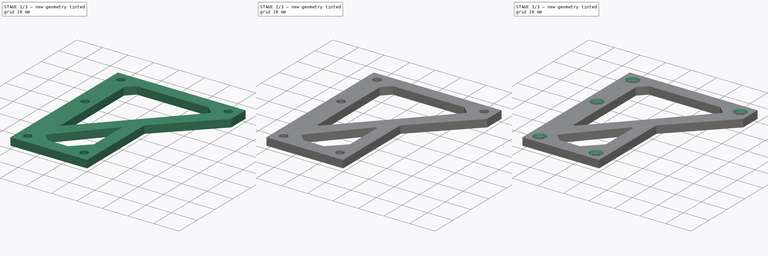
[diagram: build sequence overview — one tinted view per stage of 3, left to right]
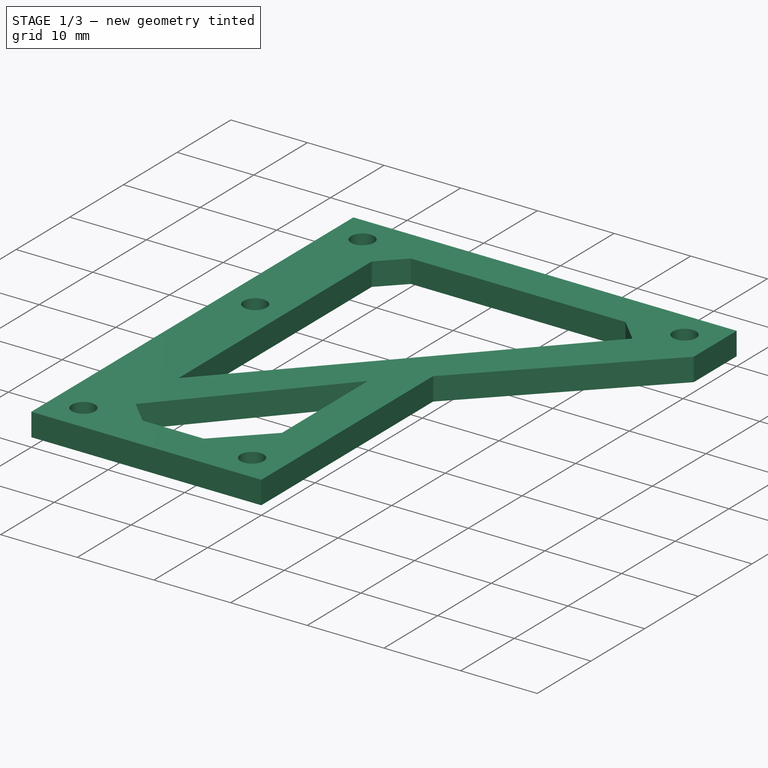
[diagram: stage 1 of 3 — iso view after this stage's code; geometry added in this stage tinted green]
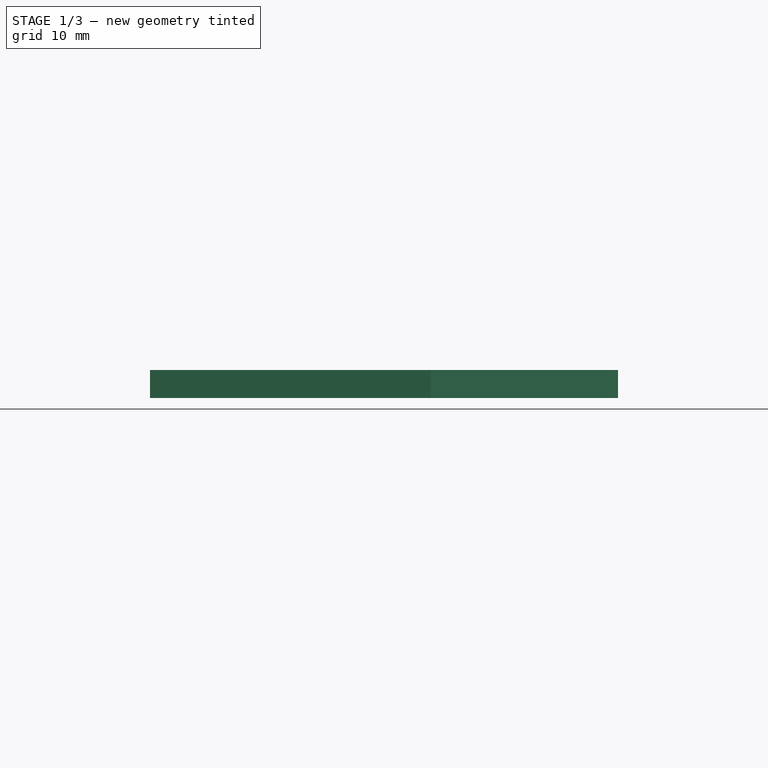
[diagram: stage 1 of 3 — front view after this stage's code; geometry added in this stage tinted green]
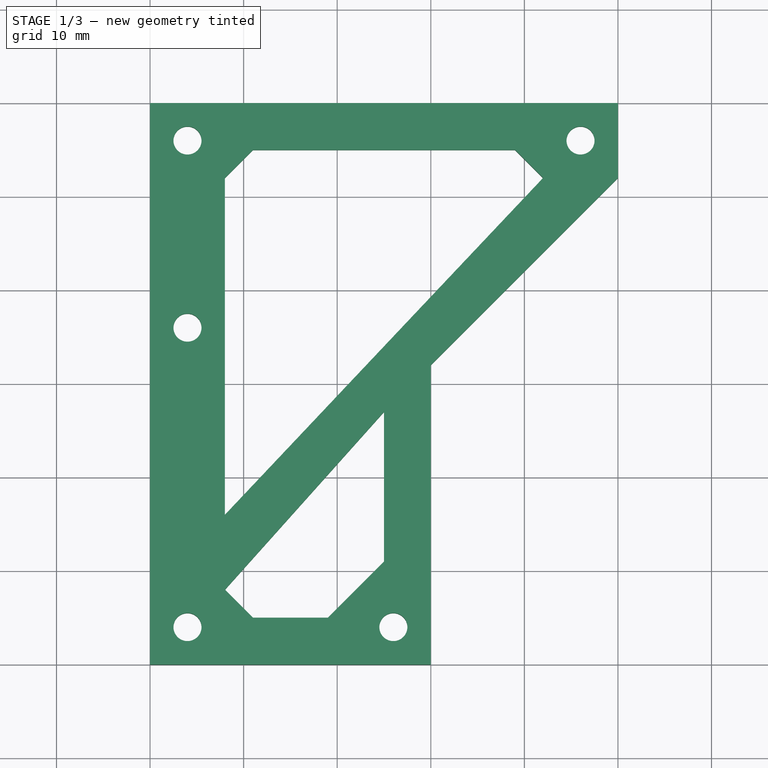
[diagram: stage 1 of 3 — top view after this stage's code; geometry added in this stage tinted green]
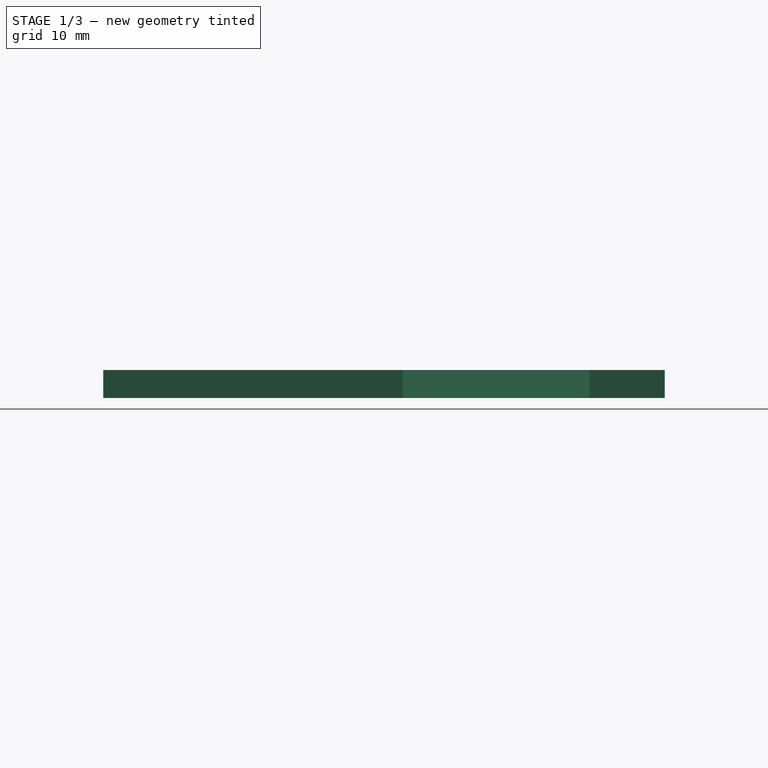
[diagram: stage 1 of 3 — right view after this stage's code; geometry added in this stage tinted green]
FCSTD DOCUMENT  (FreeCAD 0.18R4 (GitTag))
Label: Box_corner
License: All rights reserved
LicenseURL: http://en.wikipedia.org/wiki/All_rights_reserved
objects: Sketcher::SketchObject×2, PartDesign::Fillet×2, PartDesign::Pad×1, PartDesign::Pocket×1, PartDesign::Chamfer×1, PartDesign::Body×1
note: 10 computed .brp shape members not serialized (recipe doc carries the construction recipe); baked Part::Feature solids carry a one-line shape summary decoded from their .brp

FEATURE [Sketcher::SketchObject] Sketch
  MapMode = 5
  Support = -> [XY_Plane]
  sketch-geometry (17):
    g0: LineSegment StartX=0 StartY=0 StartZ=0 EndX=0 EndY=-60 EndZ=0
    g1: LineSegment StartX=0 StartY=-60 StartZ=0 EndX=8 EndY=-60 EndZ=0
    g2: LineSegment StartX=50 StartY=-8 StartZ=0 EndX=50 EndY=0 EndZ=0
    g3: LineSegment StartX=50 StartY=0 StartZ=0 EndX=0 EndY=0 EndZ=0
    g4: LineSegment StartX=30 StartY=-28 StartZ=0 EndX=30 EndY=-60 EndZ=0
    g5: LineSegment StartX=30 StartY=-60 StartZ=0 EndX=8 EndY=-60 EndZ=0
    g6: LineSegment StartX=50 StartY=-8 StartZ=0 EndX=30 EndY=-28 EndZ=0
    g7: LineSegment StartX=8 StartY=-8 StartZ=0 EndX=11 EndY=-5 EndZ=0
    g8: LineSegment StartX=11 StartY=-5 StartZ=0 EndX=39 EndY=-5 EndZ=0
    g9: LineSegment StartX=39 StartY=-5 StartZ=0 EndX=42 EndY=-8 EndZ=0
    g10: LineSegment StartX=42 StartY=-8 StartZ=0 EndX=8 EndY=-44 EndZ=0
    g11: LineSegment StartX=8 StartY=-44 StartZ=0 EndX=8 EndY=-8 EndZ=0
    g12: LineSegment StartX=8 StartY=-52 StartZ=0 EndX=25 EndY=-33 EndZ=0
    g13: LineSegment StartX=25 StartY=-33 StartZ=0 EndX=25 EndY=-49 EndZ=0
    g14: LineSegment StartX=25 StartY=-49 StartZ=0 EndX=19 EndY=-55 EndZ=0
    g15: LineSegment StartX=19 StartY=-55 StartZ=0 EndX=11 EndY=-55 EndZ=0
    g16: LineSegment StartX=11 StartY=-55 StartZ=0 EndX=8 EndY=-52 EndZ=0
  constraints (50):
    c: Coincident(g0,g1)
    c: Coincident(g2,g3)
    c: Coincident(g3,g0)
    c: Coincident(g0,g-1)
    c: DistanceX(g0,g2) = 50
    c: DistanceY(g0,g0) = 60
    c: DistanceY(g1,g0) = 60
    c: Vertical(g0)
    c: Horizontal(g3)
    c: Vertical(g2)
    c: DistanceX(g0,g1) = 8
    c: DistanceY(g2,g2) = 8
    c: Coincident(g4,g5)
    c: Coincident(g5,g1)
    c: Horizontal(g5)
    c: Vertical(g4)
    c: DistanceY(g4,g4) = 32
    c: DistanceX(g0,g4) = 30
    c: Coincident(g6,g2)
    c: Coincident(g6,g4)
    c: Coincident(g7,g8)
    c: Coincident(g8,g9)
    c: Coincident(g9,g10)
    c: Coincident(g10,g11)
    c: Coincident(g7,g11)
    c: Vertical(g11)
    c: Horizontal(g8)
    c: DistanceX(g0,g7) = 8
    c: DistanceY(g7,g0) = 5
    c: DistanceY(g9,g2) = 8
    c: DistanceX(g9,g2) = 8
    c: DistanceY(g10,g7) = 36
    c: DistanceX(g7,g7) = 3
    c: DistanceX(g8,g9) = 3
    c: DistanceY(g7,g0) = 8
    c: Coincident(g12,g13)
    c: Coincident(g13,g14)
    c: Coincident(g14,g15)
    c: Coincident(g15,g16)
    c: Coincident(g16,g12)
    c: DistanceX(g0,g12) = 8
    c: DistanceX(g14,g4) = 11
    c: DistanceX(g13,g4) = 5
    c: Vertical(g13)
    c: Horizontal(g15)
    c: DistanceY(g12,g4) = 5
    c: DistanceY(g13,g12) = 16
    c: DistanceY(g1,g12) = 8
    c: DistanceY(g1,g15) = 5
    c: DistanceX(g12,g15) = 3
FEATURE [PartDesign::Pad] Pad
  Length = 3
  Length2 = 100
  Profile = -> Sketch
  Type = 0
FEATURE [Sketcher::SketchObject] Sketch001
  MapMode = 5
  Placement = pos=(0,0,3) rot=(0,0,1;0rad)
  Support = -> [Pad]
  sketch-geometry (5):
    g0: Circle CenterX=4 CenterY=-4 CenterZ=0 NormalX=0 NormalY=0 NormalZ=1 AngleXU=0 Radius=1.5
    g1: Circle CenterX=46 CenterY=-4 CenterZ=0 NormalX=0 NormalY=0 NormalZ=1 AngleXU=0 Radius=1.5
    g2: Circle CenterX=4 CenterY=-24 CenterZ=0 NormalX=0 NormalY=0 NormalZ=1 AngleXU=0 Radius=1.5
    g3: Circle CenterX=4 CenterY=-56 CenterZ=0 NormalX=0 NormalY=0 NormalZ=1 AngleXU=0 Radius=1.5
    g4: Circle CenterX=26 CenterY=-56 CenterZ=0 NormalX=0 NormalY=0 NormalZ=1 AngleXU=0 Radius=1.5
  constraints (15):
    c: DistanceX(g-1,g0) = 4
    c: DistanceX(g-1,g1) = 46
    c: DistanceX(g-1,g2) = 4
    c: DistanceX(g-1,g3) = 4
    c: DistanceX(g-1,g4) = 26
    c: DistanceY(g0,g-1) = 4
    c: DistanceY(g1,g-1) = 4
    c: DistanceY(g2,g-1) = 24
    c: DistanceY(g3,g-1) = 56
    c: DistanceY(g4,g-1) = 56
    c: Radius(g0) = 1.5
    c: Radius(g2) = 1.5
    c: Radius(g1) = 1.5
    c: Radius(g3) = 1.5
    c: Radius(g4) = 1.5
FEATURE [PartDesign::Pocket] Pocket
  BaseFeature = -> Pad
  Length = 5
  Length2 = 100
  Profile = -> Sketch001
  Type = 0
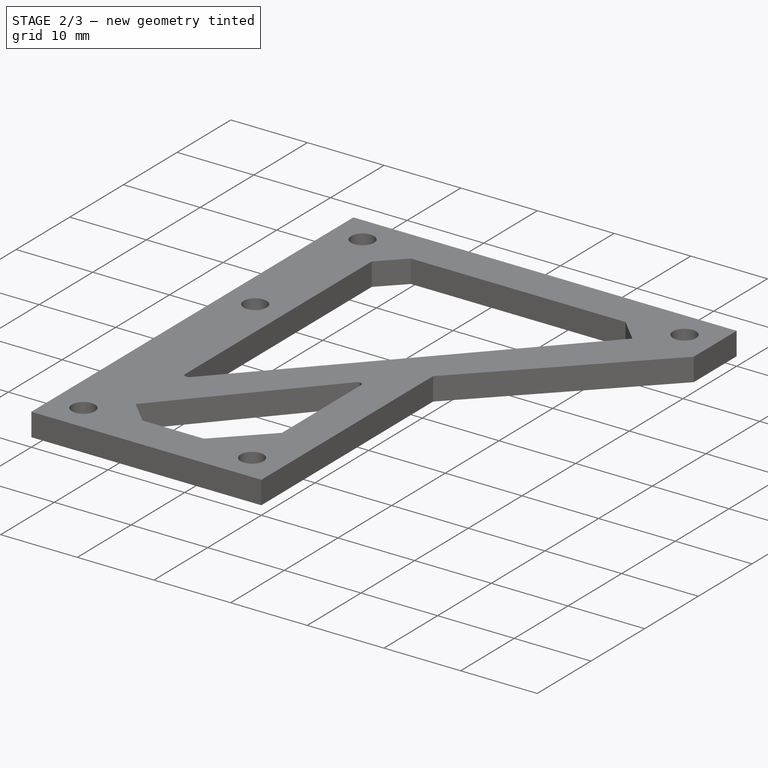
[diagram: stage 2 of 3 — iso view after this stage's code; geometry added in this stage tinted green]
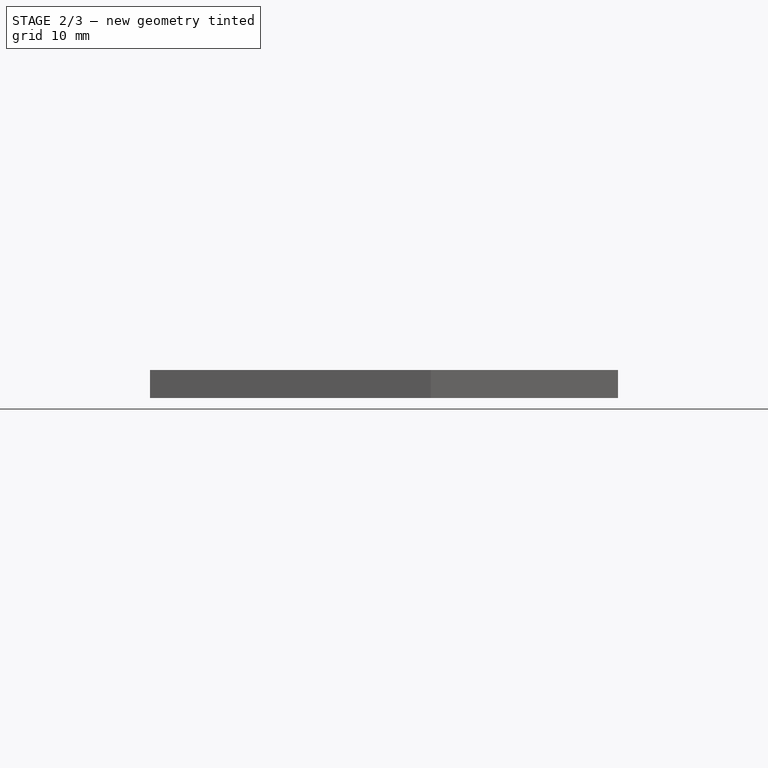
[diagram: stage 2 of 3 — front view after this stage's code; geometry added in this stage tinted green]
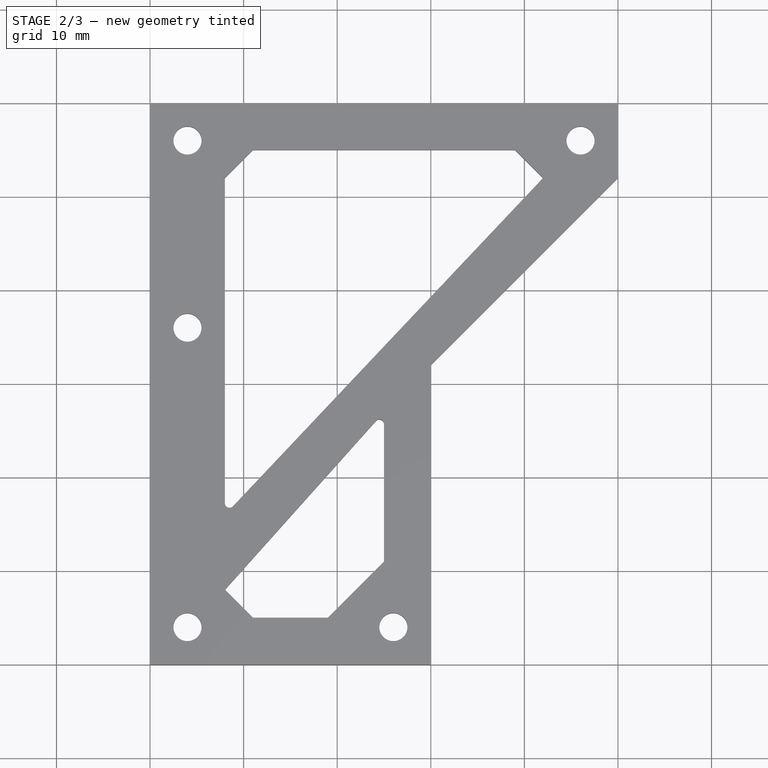
[diagram: stage 2 of 3 — top view after this stage's code; geometry added in this stage tinted green]
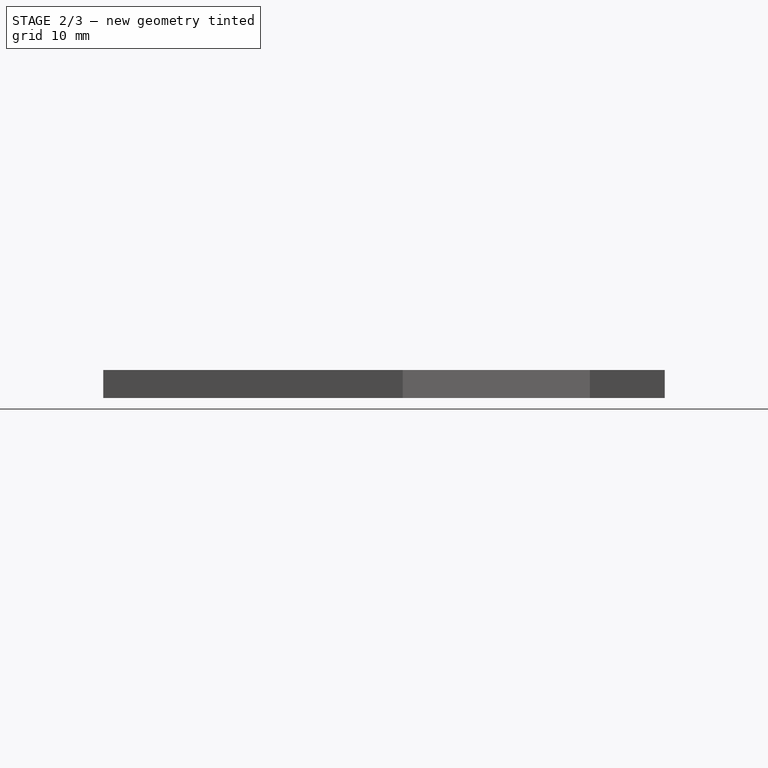
[diagram: stage 2 of 3 — right view after this stage's code; geometry added in this stage tinted green]
FEATURE [PartDesign::Fillet] Fillet
  Base = -> Pocket [Edge60,Edge53]
  BaseFeature = -> Pocket
  Radius = 0.5
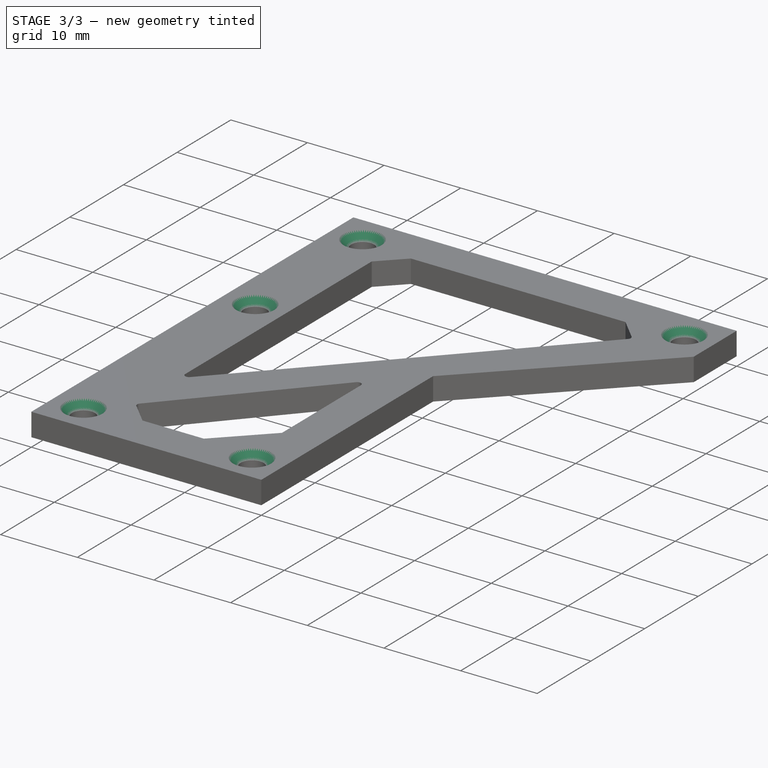
[diagram: stage 3 of 3 — iso view after this stage's code; geometry added in this stage tinted green]
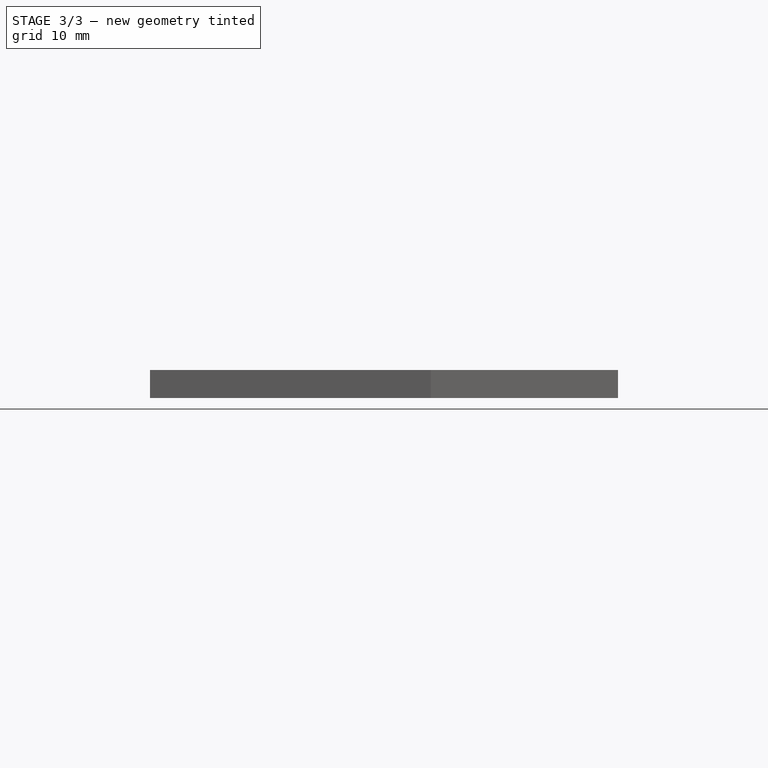
[diagram: stage 3 of 3 — front view after this stage's code; geometry added in this stage tinted green]
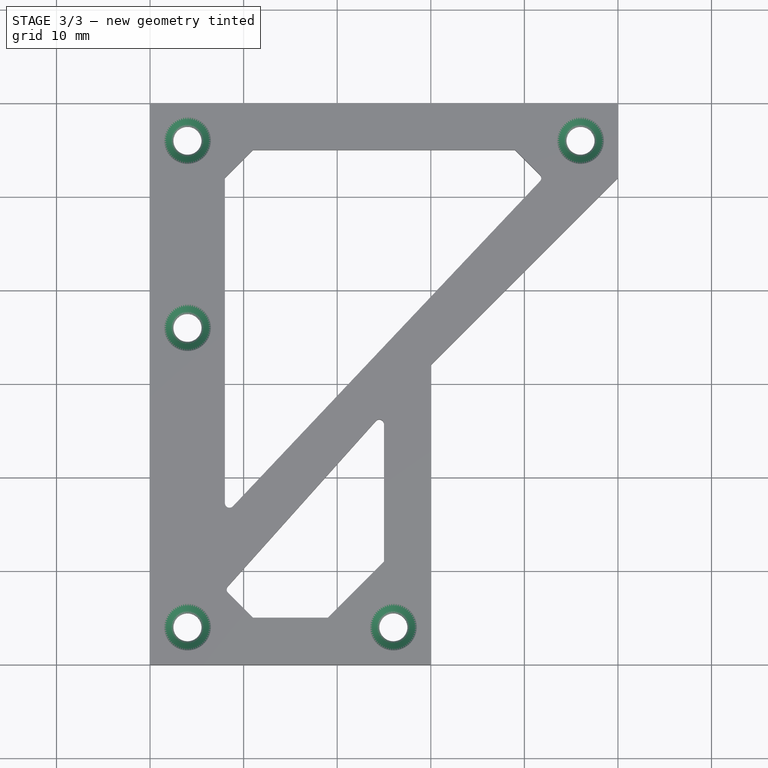
[diagram: stage 3 of 3 — top view after this stage's code; geometry added in this stage tinted green]
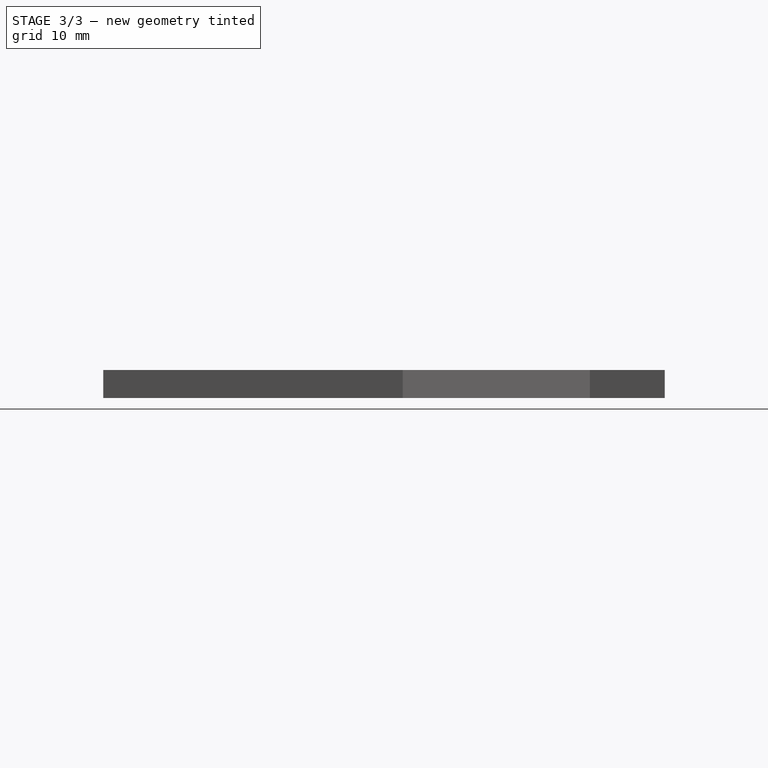
[diagram: stage 3 of 3 — right view after this stage's code; geometry added in this stage tinted green]
FEATURE [PartDesign::Fillet] Fillet001
  Base = -> Fillet [Edge26,Edge68]
  BaseFeature = -> Fillet
  Radius = 0.5
FEATURE [PartDesign::Chamfer] Chamfer
  Base = -> Fillet001 [Edge59,Edge57,Edge61,Edge55,Edge63]
  BaseFeature = -> Fillet001
  Size = 1
FEATURE [PartDesign::Body] Body
  Group = -> [Sketch,Pad,Sketch001,Pocket,Fillet,Fillet001,Chamfer]
  Origin = -> Origin
  Tip = -> Chamfer
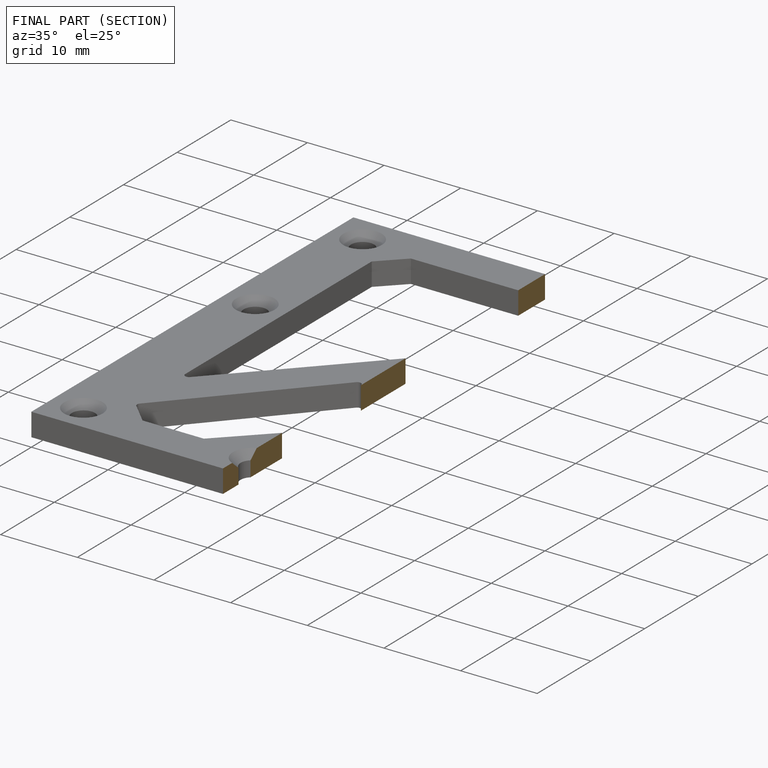
[diagram: finished part — half-section view (interior)]
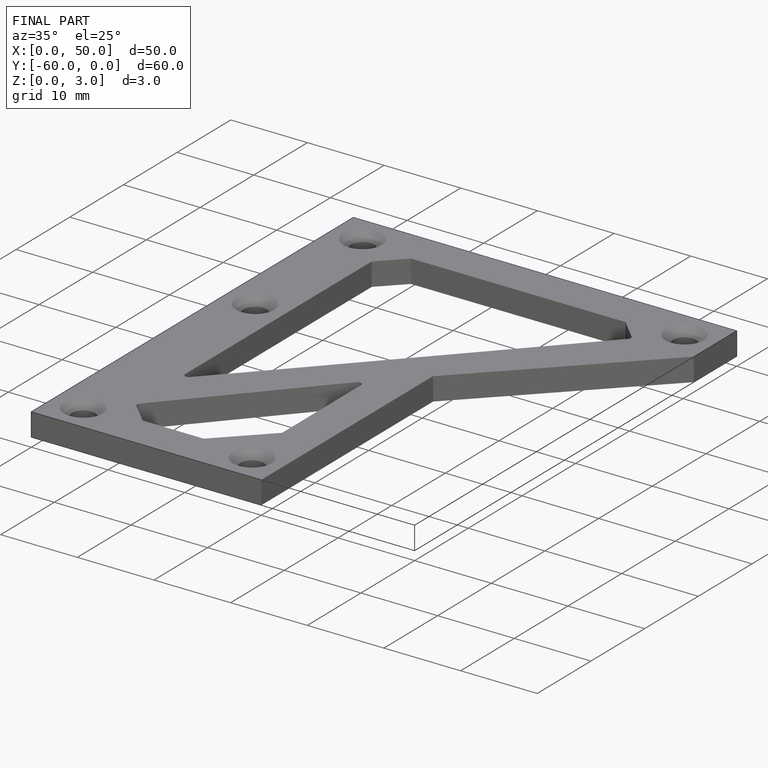
[diagram: finished part — iso view with bounding-box wireframe]
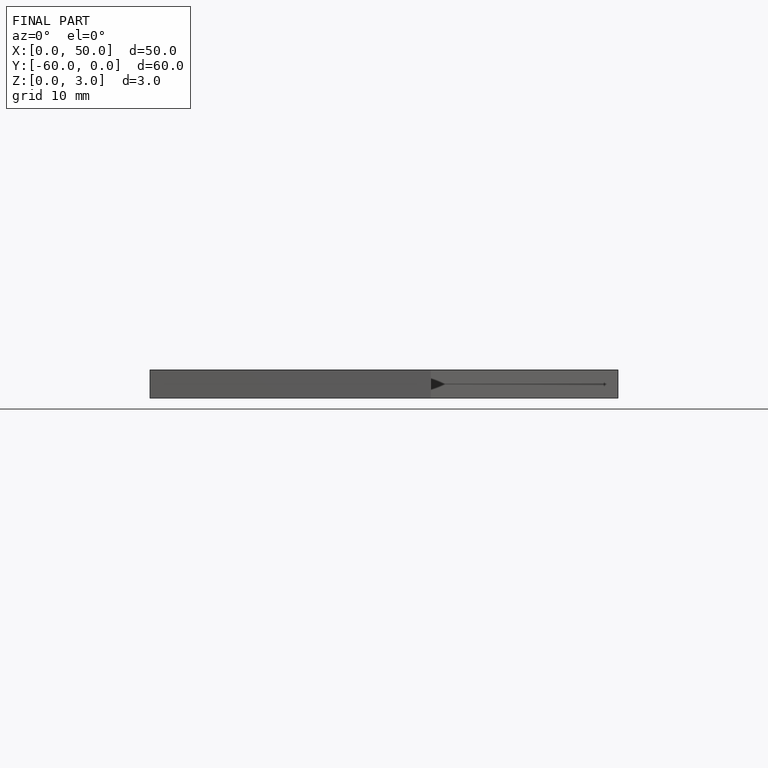
[diagram: finished part — front view with bounding-box wireframe]
